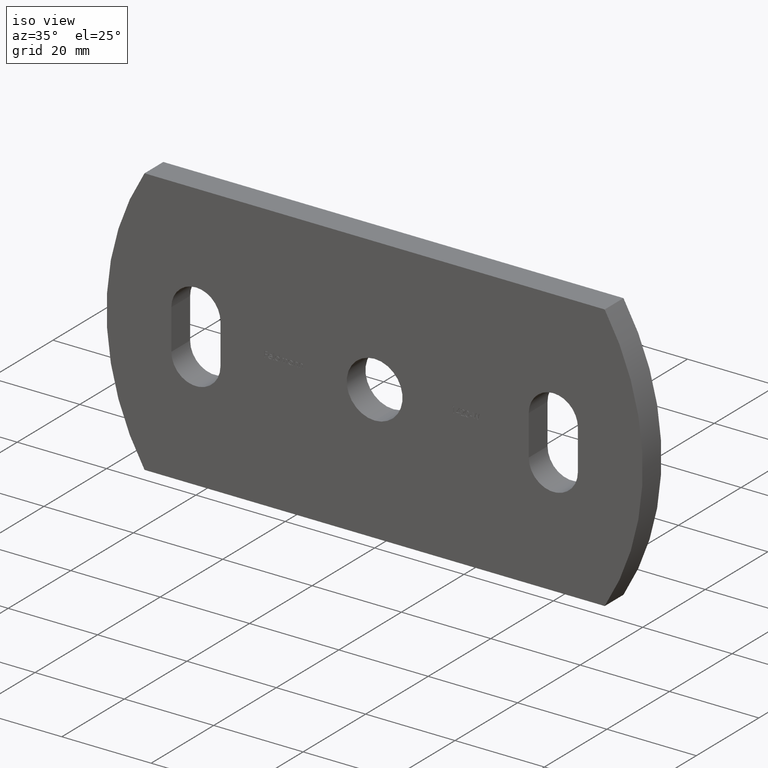
[diagram: clean part render]
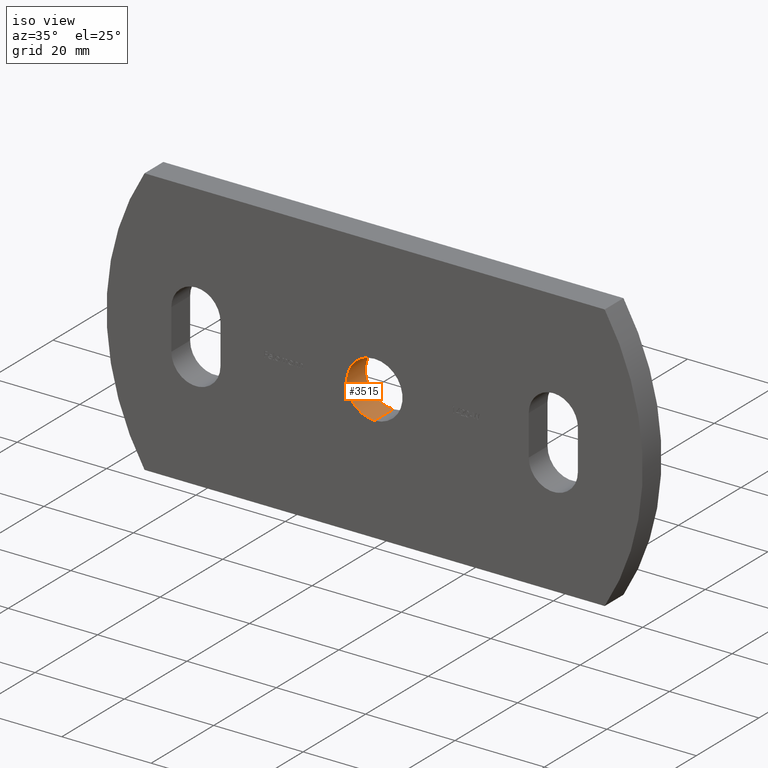
[diagram: same view with one face highlighted and labeled with its STEP entity id]
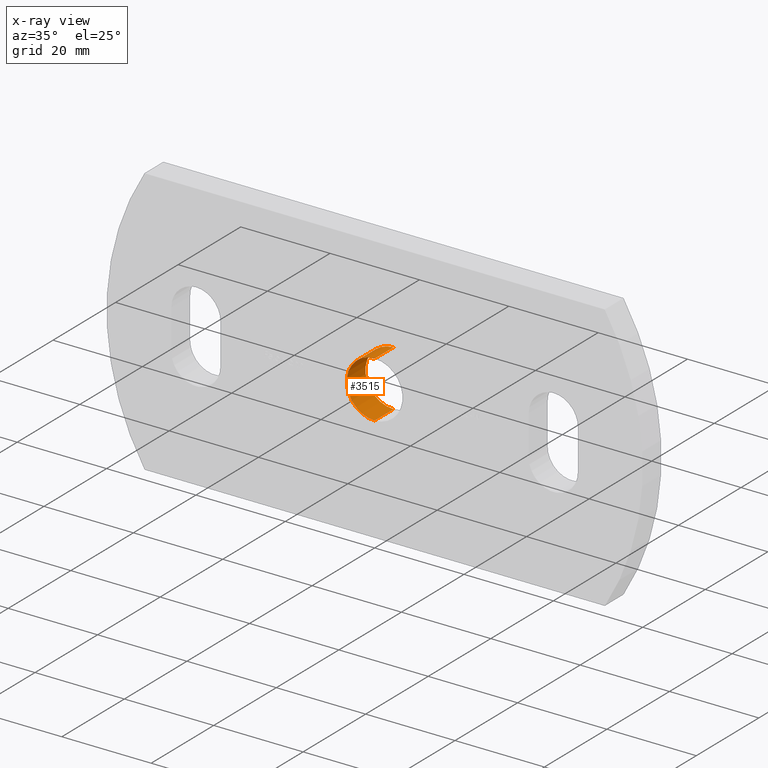
[diagram: x-ray of the same camera — body ghosted, the highlighted face saturated]
A machine part, iso view. The second image highlights one B-rep face of the part: STEP entity #3515.
The next image is the same camera in x-ray: the body ghosted, the highlighted face saturated — about 0% of this face is hidden behind the body in this view.
In plain terms, the highlighted cylindrical surface (edge-blend (fillet) strip) has radius 6.25 mm, axis along (-0, 1, -0).
Its self-contained STEP definition (entity closure, byte-faithful):
#185 = DIRECTION ( 'NONE',  ( 0.0000000000000000000, 1.000000000000000000, 0.0000000000000000000 ) ) ;
#397 = VECTOR ( 'NONE', #2109, 1000.000000000000000 ) ;
#1516 = EDGE_CURVE ( 'NONE', #3809, #1939, #4310, .T. ) ;
#1587 = DIRECTION ( 'NONE',  ( 0.0000000000000000000, 0.0000000000000000000, 1.000000000000000000 ) ) ;
#1689 = CARTESIAN_POINT ( 'NONE',  ( 7.654042494670957600E-016, 0.0000000000000000000, -6.250000000000000000 ) ) ;
#1936 = CARTESIAN_POINT ( 'NONE',  ( 0.0000000000000000000, 0.0000000000000000000, 6.250000000000000000 ) ) ;
#1939 = VERTEX_POINT ( 'NONE', #3062 ) ;
#2109 = DIRECTION ( 'NONE',  ( -0.0000000000000000000, 1.000000000000000000, -0.0000000000000000000 ) ) ;
#2297 = DIRECTION ( 'NONE',  ( -0.0000000000000000000, 1.000000000000000000, -0.0000000000000000000 ) ) ;
#2409 = DIRECTION ( 'NONE',  ( -0.0000000000000000000, 1.000000000000000000, -0.0000000000000000000 ) ) ;
#3023 = AXIS2_PLACEMENT_3D ( 'NONE', #4252, #7228, #5814 ) ;
#3062 = CARTESIAN_POINT ( 'NONE',  ( 0.0000000000000000000, 6.000000000000000000, 6.250000000000000000 ) ) ;
#3217 = EDGE_CURVE ( 'NONE', #9384, #9113, #3986, .T. ) ;
#3491 = CARTESIAN_POINT ( 'NONE',  ( 0.0000000000000000000, 0.0000000000000000000, 6.250000000000000000 ) ) ;
#3515 = ADVANCED_FACE ( 'NONE', ( #7429 ), #3537, .F. ) ;
#3537 = CYLINDRICAL_SURFACE ( 'NONE', #4782, 6.250000000000000000 ) ;
#3809 = VERTEX_POINT ( 'NONE', #1936 ) ;
#3849 = CARTESIAN_POINT ( 'NONE',  ( 0.0000000000000000000, 6.000000000000000000, 0.0000000000000000000 ) ) ;
#3986 = LINE ( 'NONE', #1689, #7650 ) ;
#4252 = CARTESIAN_POINT ( 'NONE',  ( 0.0000000000000000000, 0.0000000000000000000, 0.0000000000000000000 ) ) ;
#4310 = LINE ( 'NONE', #3491, #397 ) ;
#4549 = DIRECTION ( 'NONE',  ( 0.0000000000000000000, 0.0000000000000000000, 1.000000000000000000 ) ) ;
#4782 = AXIS2_PLACEMENT_3D ( 'NONE', #7416, #2297, #4549 ) ;
#5814 = DIRECTION ( 'NONE',  ( 0.0000000000000000000, 0.0000000000000000000, 1.000000000000000000 ) ) ;
#6316 = AXIS2_PLACEMENT_3D ( 'NONE', #3849, #185, #1587 ) ;
#6382 = ORIENTED_EDGE ( 'NONE', *, *, #7743, .T. ) ;
#6875 = CARTESIAN_POINT ( 'NONE',  ( 7.654042494670957600E-016, 6.000000000000000000, -6.250000000000000000 ) ) ;
#6901 = CIRCLE ( 'NONE', #6316, 6.250000000000000000 ) ;
#7228 = DIRECTION ( 'NONE',  ( 0.0000000000000000000, 1.000000000000000000, 0.0000000000000000000 ) ) ;
#7395 = ORIENTED_EDGE ( 'NONE', *, *, #3217, .T. ) ;
#7416 = CARTESIAN_POINT ( 'NONE',  ( 0.0000000000000000000, 0.0000000000000000000, 0.0000000000000000000 ) ) ;
#7429 = FACE_OUTER_BOUND ( 'NONE', #7563, .T. ) ;
#7515 = EDGE_CURVE ( 'NONE', #9384, #3809, #9098, .T. ) ;
#7563 = EDGE_LOOP ( 'NONE', ( #8250, #7395, #6382, #8455 ) ) ;
#7650 = VECTOR ( 'NONE', #2409, 1000.000000000000000 ) ;
#7743 = EDGE_CURVE ( 'NONE', #9113, #1939, #6901, .T. ) ;
#8013 = CARTESIAN_POINT ( 'NONE',  ( 7.654042494670957600E-016, 0.0000000000000000000, -6.250000000000000000 ) ) ;
#8250 = ORIENTED_EDGE ( 'NONE', *, *, #7515, .F. ) ;
#8455 = ORIENTED_EDGE ( 'NONE', *, *, #1516, .F. ) ;
#9098 = CIRCLE ( 'NONE', #3023, 6.250000000000000000 ) ;
#9113 = VERTEX_POINT ( 'NONE', #6875 ) ;
#9384 = VERTEX_POINT ( 'NONE', #8013 ) ;